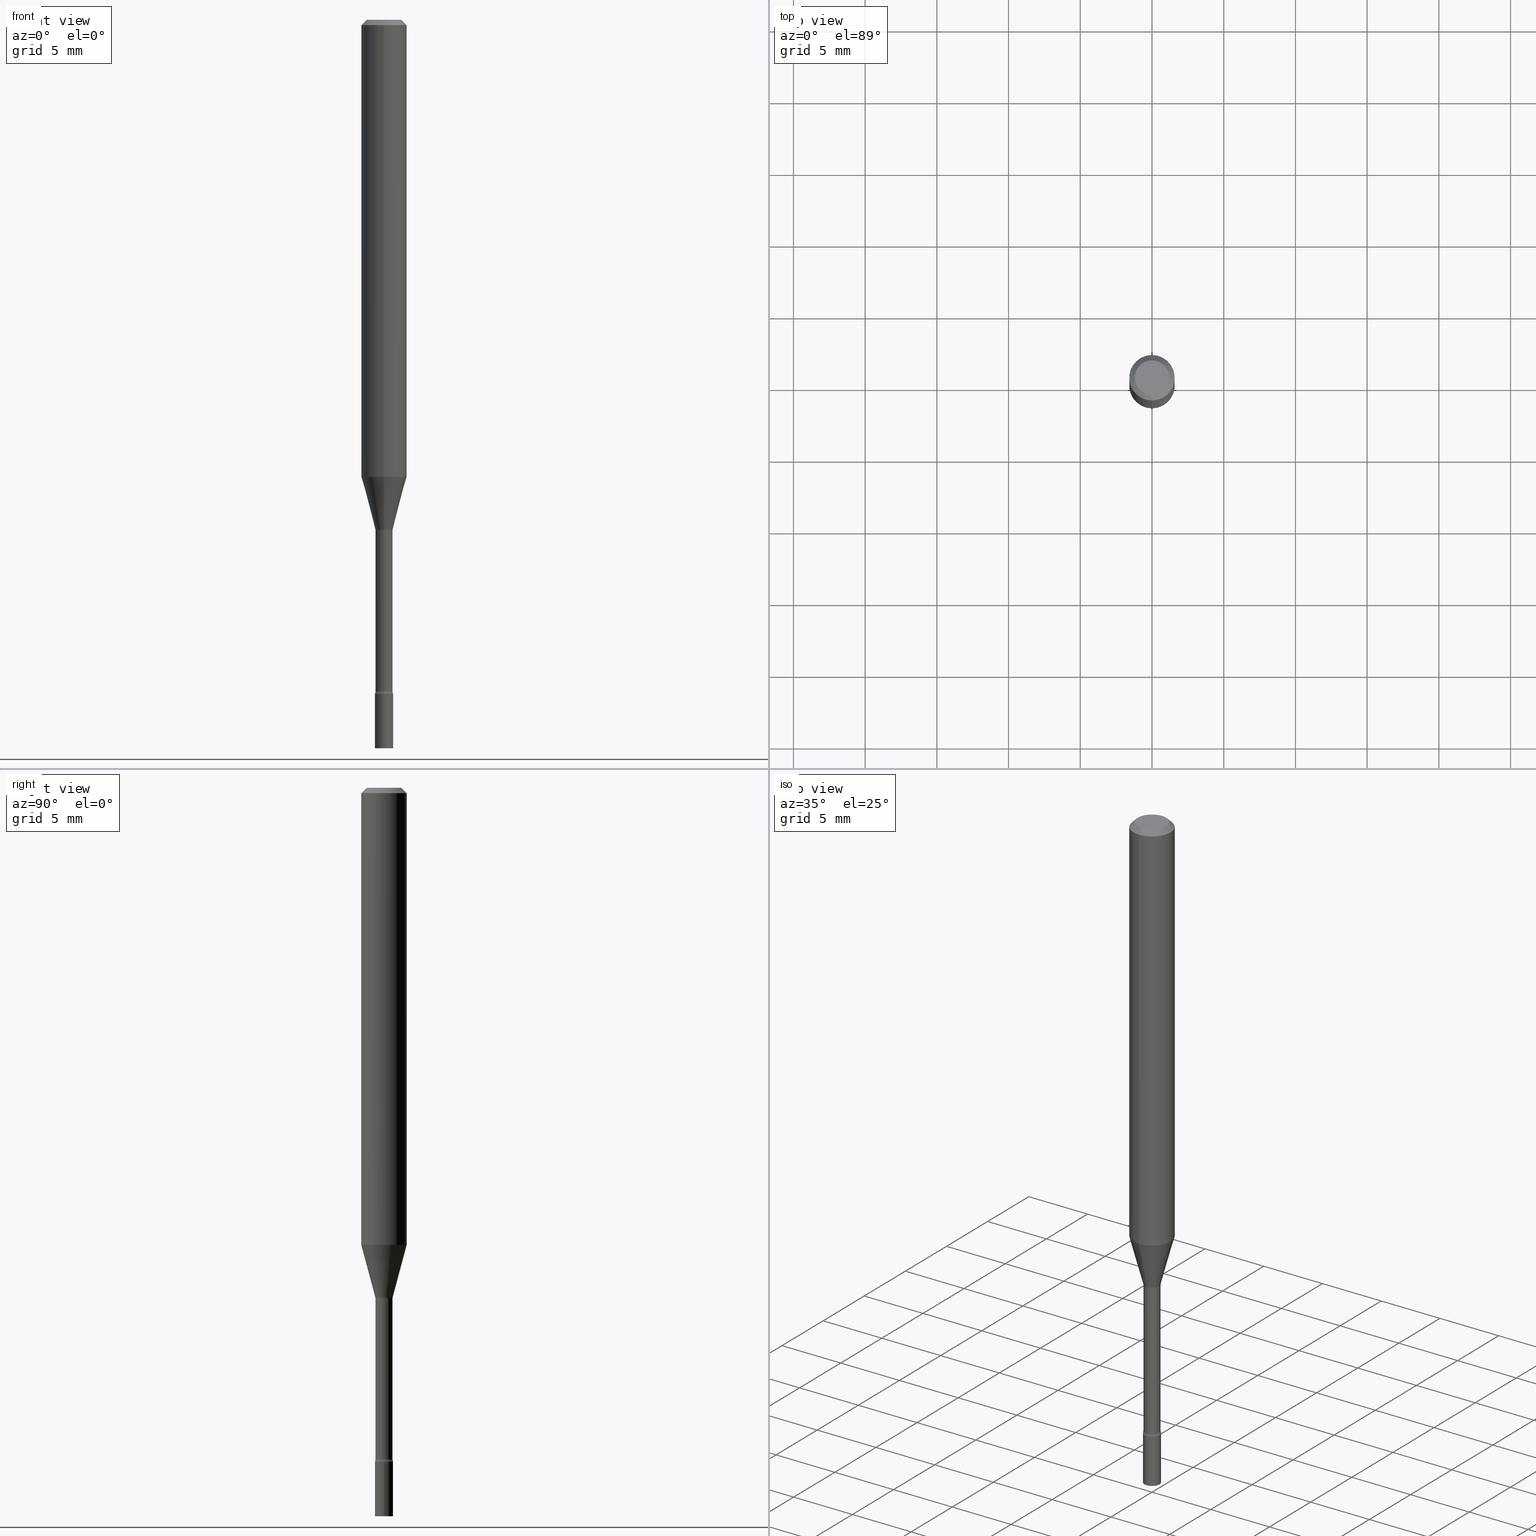
[diagram: canonical four-view strip — front | top / right | iso, engineering-drawing reading convention]
A machine part, canonical four-view strip (front | top / right | iso — engineering-drawing reading convention). The complete STEP part file that produces these views, byte-faithful:
ISO-10303-21;
HEADER;
FILE_DESCRIPTION (( 'STEP AP203' ),
    '1' );
FILE_NAME ('09372.STEP',
    '2024-03-08T23:27:05',
    ( '' ),
    ( '' ),
    'SwSTEP 2.0',
    'SolidWorks 2023',
    '' );
FILE_SCHEMA (( 'CONFIG_CONTROL_DESIGN' ));
ENDSEC;

DATA;
#1 = ORIENTED_EDGE ( 'NONE', *, *, #433, .T. ) ;
#2 = CALENDAR_DATE ( 2024, 8, 3 ) ;
#3 = ADVANCED_FACE ( 'NONE', ( #314 ), #376, .T. ) ;
#4 = CIRCLE ( 'NONE', #105, 0.02500000000000000139 ) ;
#5 = AXIS2_PLACEMENT_3D ( 'NONE', #214, #99, #345 ) ;
#6 = EDGE_LOOP ( 'NONE', ( #388, #141 ) ) ;
#7 = DIRECTION ( 'NONE',  ( -2.445515165331157393E-29, 3.491414949907445282E-15, 1.000000000000000000 ) ) ;
#8 = CARTESIAN_POINT ( 'NONE',  ( 2.735589532676728342E-16, 0.03849999999999511452, -1.401974787463811101 ) ) ;
#9 = APPROVAL_STATUS ( 'not_yet_approved' ) ;
#10 = EDGE_CURVE ( 'NONE', #465, #247, #235, .T. ) ;
#11 = COORDINATED_UNIVERSAL_TIME_OFFSET ( 5, 0, .BEHIND. ) ;
#12 = DIRECTION ( 'NONE',  ( 1.000000000000000000, -6.982962677686267499E-15, 4.876176775795936353E-29 ) ) ;
#13 = APPLICATION_CONTEXT ( 'configuration controlled 3d designs of mechanical parts and assemblies' ) ;
#14 = VECTOR ( 'NONE', #150, 39.37007874015748143 ) ;
#15 = CIRCLE ( 'NONE', #324, 0.06250000000000000000 ) ;
#16 = EDGE_CURVE ( 'NONE', #103, #420, #492, .T. ) ;
#17 = CARTESIAN_POINT ( 'NONE',  ( -0.02500000000000000139, 1.776356839400250563E-16, -1.229733772563726656E-30 ) ) ;
#18 = CARTESIAN_POINT ( 'NONE',  ( 4.524203055862640939E-29, -6.459117657328772962E-15, -1.849999999999999867 ) ) ;
#19 = AXIS2_PLACEMENT_3D ( 'NONE', #131, #125, #12 ) ;
#20 = VECTOR ( 'NONE', #498, 39.37007874015748143 ) ;
#21 = AXIS2_PLACEMENT_3D ( 'NONE', #240, #403, #184 ) ;
#22 = EDGE_LOOP ( 'NONE', ( #242, #186 ) ) ;
#23 = DIRECTION ( 'NONE',  ( -2.445515165331157393E-29, 3.491414949907445282E-15, 1.000000000000000000 ) ) ;
#24 = CARTESIAN_POINT ( 'NONE',  ( 3.668272747996743464E-31, -5.237122424861178966E-17, -0.01500000000000003067 ) ) ;
#25 = VERTEX_POINT ( 'NONE', #71 ) ;
#26 = CARTESIAN_POINT ( 'NONE',  ( 4.440892098500625669E-16, 0.06250000000000000000, -2.182134343692153054E-16 ) ) ;
#27 = ADVANCED_FACE ( 'NONE', ( #152 ), #145, .T. ) ;
#28 = CARTESIAN_POINT ( 'NONE',  ( 4.508127964348889848E-29, -6.436411955380906656E-15, -1.843461651584689109 ) ) ;
#29 = EDGE_LOOP ( 'NONE', ( #144, #195, #46, #472 ) ) ;
#30 = ORIENTED_EDGE ( 'NONE', *, *, #470, .T. ) ;
#31 = CYLINDRICAL_SURFACE ( 'NONE', #294, 0.02500000000000000139 ) ;
#32 = VERTEX_POINT ( 'NONE', #507 ) ;
#33 = DIRECTION ( 'NONE',  ( -6.982962677686265133E-15, -1.000000000000000000, 0.000000000000000000 ) ) ;
#34 = CARTESIAN_POINT ( 'NONE',  ( 4.364351673553919652E-16, 0.06249999999999995143, -0.01500000000000024751 ) ) ;
#35 = PLANE ( 'NONE',  #88 ) ;
#36 = AXIS2_PLACEMENT_3D ( 'NONE', #28, #268, #341 ) ;
#37 = CC_DESIGN_DATE_AND_TIME_ASSIGNMENT ( #244, #405, ( #444 ) ) ;
#38 = DIRECTION ( 'NONE',  ( -2.445515165331157393E-29, 3.491414949907445282E-15, 1.000000000000000000 ) ) ;
#39 = ADVANCED_FACE ( 'NONE', ( #323 ), #232, .T. ) ;
#40 = PERSON_AND_ORGANIZATION_ROLE ( 'classification_officer' ) ;
#41 = VERTEX_POINT ( 'NONE', #392 ) ;
#42 = CARTESIAN_POINT ( 'NONE',  ( -1.640996229255930104E-16, -0.02350000000000489891, -1.401974787463811101 ) ) ;
#43 = ADVANCED_FACE ( 'NONE', ( #398 ), #31, .T. ) ;
#44 = ORIENTED_EDGE ( 'NONE', *, *, #16, .F. ) ;
#45 = APPROVAL ( #279, 'UNSPECIFIED' ) ;
#46 = ORIENTED_EDGE ( 'NONE', *, *, #215, .T. ) ;
#47 = AXIS2_PLACEMENT_3D ( 'NONE', #8, #413, #457 ) ;
#48 = AXIS2_PLACEMENT_3D ( 'NONE', #380, #226, #258 ) ;
#49 = DESIGN_CONTEXT ( 'detailed design', #13, 'design' ) ;
#50 = APPROVAL_ROLE ( '' ) ;
#51 = CARTESIAN_POINT ( 'NONE',  ( 7.071711953271852697E-46, -1.009614709616782144E-31, -2.891706440231477285E-17 ) ) ;
#52 = CIRCLE ( 'NONE', #459, 0.01499999999999998557 ) ;
#53 = CIRCLE ( 'NONE', #360, 0.02500000000000000139 ) ;
#54 = DIRECTION ( 'NONE',  ( -6.982962677686265133E-15, -1.000000000000000000, 0.000000000000000000 ) ) ;
#55 = ORIENTED_EDGE ( 'NONE', *, *, #305, .F. ) ;
#56 = CARTESIAN_POINT ( 'NONE',  ( 0.000000000000000000, 0.000000000000000000, 0.000000000000000000 ) ) ;
#57 = ORIENTED_EDGE ( 'NONE', *, *, #16, .T. ) ;
#58 = UNCERTAINTY_MEASURE_WITH_UNIT (LENGTH_MEASURE( 1.000000000000000082E-05 ), #147, 'distance_accuracy_value', 'NONE');
#59 = CARTESIAN_POINT ( 'NONE',  ( -1.745740669421113083E-16, -0.02500000000000644762, -1.849999999999999867 ) ) ;
#60 = EDGE_LOOP ( 'NONE', ( #109, #503, #1, #307 ) ) ;
#61 = ADVANCED_BREP_SHAPE_REPRESENTATION ( '09372', ( #282, #90, #62 ), #164 ) ;
#62 = AXIS2_PLACEMENT_3D ( 'NONE', #153, #320, #116 ) ;
#63 = CYLINDRICAL_SURFACE ( 'NONE', #322, 0.02350000000000003475 ) ;
#64 = VERTEX_POINT ( 'NONE', #358 ) ;
#65 = DIRECTION ( 'NONE',  ( -2.445515165331157393E-29, 3.491414949907445282E-15, 1.000000000000000000 ) ) ;
#66 = DIRECTION ( 'NONE',  ( -2.445515165331157393E-29, 3.491414949907445282E-15, 1.000000000000000000 ) ) ;
#67 = ORIENTED_EDGE ( 'NONE', *, *, #509, .T. ) ;
#68 = CARTESIAN_POINT ( 'NONE',  ( 4.524117291442502256E-29, -6.459240476859818795E-15, -1.849999999999999867 ) ) ;
#69 = DIRECTION ( 'NONE',  ( -6.982962677686265922E-15, -1.000000000000000000, 3.491414949907444887E-15 ) ) ;
#70 = ORIENTED_EDGE ( 'NONE', *, *, #233, .T. ) ;
#71 = CARTESIAN_POINT ( 'NONE',  ( 3.840629472727447874E-16, 0.04749999999999999362, -1.947592745229184119E-16 ) ) ;
#72 = CIRCLE ( 'NONE', #365, 0.01499999999999998557 ) ;
#73 = TOROIDAL_SURFACE ( 'NONE', #266, 0.03850000000000005501, 0.01499999999999998036 ) ;
#74 = PERSON_AND_ORGANIZATION_ROLE ( 'design_owner' ) ;
#75 = LINE ( 'NONE', #112, #137 ) ;
#76 = EDGE_CURVE ( 'NONE', #103, #158, #238, .T. ) ;
#77 = DIRECTION ( 'NONE',  ( -6.982962677686265922E-15, -1.000000000000000000, 4.370956789862821150E-15 ) ) ;
#78 = APPROVAL_PERSON_ORGANIZATION ( #339, #263, #50 ) ;
#79 = ORIENTED_EDGE ( 'NONE', *, *, #102, .F. ) ;
#80 = DIRECTION ( 'NONE',  ( 1.000000000000000000, -6.982962677686254878E-15, 0.000000000000000000 ) ) ;
#81 = EDGE_CURVE ( 'NONE', #420, #465, #505, .T. ) ;
#82 = COORDINATED_UNIVERSAL_TIME_OFFSET ( 5, 0, .BEHIND. ) ;
#83 = EDGE_CURVE ( 'NONE', #465, #113, #286, .T. ) ;
#84 = FACE_OUTER_BOUND ( 'NONE', #391, .T. ) ;
#85 = DIRECTION ( 'NONE',  ( 7.105427357600997914E-15, 1.000000000000000000, 0.000000000000000000 ) ) ;
#86 = ORIENTED_EDGE ( 'NONE', *, *, #233, .F. ) ;
#87 = FACE_OUTER_BOUND ( 'NONE', #270, .T. ) ;
#88 = AXIS2_PLACEMENT_3D ( 'NONE', #440, #192, #69 ) ;
#89 = PERSON_AND_ORGANIZATION ( #311, #124 ) ;
#90 = MANIFOLD_SOLID_BREP ( 'Body-Move/Copy2[2]', #442 ) ;
#91 = CARTESIAN_POINT ( 'NONE',  ( 3.668272747996743464E-31, -5.237122424861178966E-17, -0.01500000000000003067 ) ) ;
#92 = CARTESIAN_POINT ( 'NONE',  ( 1.776356839400701940E-16, 0.02499999999999353087, -1.849999999999999867 ) ) ;
#93 = DIRECTION ( 'NONE',  ( -4.851104656540964275E-15, -0.7071067811865500152, -0.7071067811865450192 ) ) ;
#94 = LINE ( 'NONE', #495, #409 ) ;
#95 = AXIS2_PLACEMENT_3D ( 'NONE', #363, #408, #161 ) ;
#96 = LOCAL_TIME ( 18, 27, 5.000000000000000000, #128 ) ;
#97 = EDGE_CURVE ( 'NONE', #41, #205, #52, .T. ) ;
#98 = PLANE ( 'NONE',  #5 ) ;
#99 = DIRECTION ( 'NONE',  ( 2.438088387897960049E-29, -3.491481338843145188E-15, -1.000000000000000000 ) ) ;
#100 = DIRECTION ( 'NONE',  ( -1.000000000000000000, 6.982962677686265922E-15, -4.883557194083112901E-29 ) ) ;
#101 = DIRECTION ( 'NONE',  ( -6.982962677686265133E-15, -1.000000000000000000, 0.000000000000000000 ) ) ;
#102 = EDGE_CURVE ( 'NONE', #158, #390, #321, .T. ) ;
#103 = VERTEX_POINT ( 'NONE', #166 ) ;
#104 = ORIENTED_EDGE ( 'NONE', *, *, #202, .T. ) ;
#105 = AXIS2_PLACEMENT_3D ( 'NONE', #336, #285, #80 ) ;
#106 = VECTOR ( 'NONE', #93, 39.37007874015748143 ) ;
#107 = DIRECTION ( 'NONE',  ( -2.445515165331157393E-29, 3.491414949907445282E-15, 1.000000000000000000 ) ) ;
#108 = ORIENTED_EDGE ( 'NONE', *, *, #415, .F. ) ;
#109 = ORIENTED_EDGE ( 'NONE', *, *, #236, .F. ) ;
#110 = CARTESIAN_POINT ( 'NONE',  ( 3.419056415656554826E-29, -4.881321062093587157E-15, -1.398092501787273179 ) ) ;
#111 = EDGE_CURVE ( 'NONE', #372, #32, #4, .T. ) ;
#112 = CARTESIAN_POINT ( 'NONE',  ( -1.640996229256275231E-16, -0.02350000000000003475, 8.204825132282509112E-17 ) ) ;
#113 = VERTEX_POINT ( 'NONE', #243 ) ;
#114 = AXIS2_PLACEMENT_3D ( 'NONE', #120, #293, #374 ) ;
#115 = AXIS2_PLACEMENT_3D ( 'NONE', #180, #428, #309 ) ;
#116 = DIRECTION ( 'NONE',  ( 1.000000000000000000, 0.000000000000000000, 0.000000000000000000 ) ) ;
#117 = DIRECTION ( 'NONE',  ( -6.982962677686265922E-15, -1.000000000000000000, 3.491414949907444887E-15 ) ) ;
#118 = CYLINDRICAL_SURFACE ( 'NONE', #122, 0.06250000000000000000 ) ;
#119 = FACE_OUTER_BOUND ( 'NONE', #367, .T. ) ;
#120 = CARTESIAN_POINT ( 'NONE',  ( 4.508213425656779262E-29, -6.436289569923853216E-15, -1.843461651584689109 ) ) ;
#121 = CARTESIAN_POINT ( 'NONE',  ( 2.735589532676839768E-16, 0.03849999999999361572, -1.843461651584689109 ) ) ;
#122 = AXIS2_PLACEMENT_3D ( 'NONE', #479, #248, #117 ) ;
#123 = SHAPE_DEFINITION_REPRESENTATION ( #315, #61 ) ;
#124 = ORGANIZATION ( 'UNSPECIFIED', 'UNSPECIFIED', '' ) ;
#125 = DIRECTION ( 'NONE',  ( -2.445468806185136597E-29, 3.491481338843145583E-15, 1.000000000000000000 ) ) ;
#126 = APPLICATION_CONTEXT ( 'configuration controlled 3d designs of mechanical parts and assemblies' ) ;
#127 = DIRECTION ( 'NONE',  ( -2.445515165331157393E-29, 3.491414949907445282E-15, 1.000000000000000000 ) ) ;
#128 = COORDINATED_UNIVERSAL_TIME_OFFSET ( 5, 0, .BEHIND. ) ;
#129 = FACE_OUTER_BOUND ( 'NONE', #172, .T. ) ;
#130 = DIRECTION ( 'NONE',  ( 1.000000000000000000, -7.105427357601001070E-15, 4.926314695512106152E-29 ) ) ;
#131 = CARTESIAN_POINT ( 'NONE',  ( 0.000000000000000000, 0.000000000000000000, 0.000000000000000000 ) ) ;
#132 = CIRCLE ( 'NONE', #435, 0.02500000000000000139 ) ;
#133 = EDGE_CURVE ( 'NONE', #390, #158, #135, .T. ) ;
#134 = FACE_OUTER_BOUND ( 'NONE', #60, .T. ) ;
#135 = CIRCLE ( 'NONE', #255, 0.02350000000000000352 ) ;
#136 = ADVANCED_FACE ( 'NONE', ( #448 ), #118, .T. ) ;
#137 = VECTOR ( 'NONE', #157, 39.37007874015748143 ) ;
#138 = DIRECTION ( 'NONE',  ( -6.982962677686265922E-15, -1.000000000000000000, 3.483106191921935554E-15 ) ) ;
#139 = ORIENTED_EDGE ( 'NONE', *, *, #10, .T. ) ;
#140 = DIRECTION ( 'NONE',  ( -2.445515165331157393E-29, 3.491414949907445282E-15, 1.000000000000000000 ) ) ;
#141 = ORIENTED_EDGE ( 'NONE', *, *, #415, .T. ) ;
#142 = CARTESIAN_POINT ( 'NONE',  ( 1.706092163947573256E-16, 0.02401111260565910385, -1.398092501787273179 ) ) ;
#143 = LINE ( 'NONE', #349, #517 ) ;
#144 = ORIENTED_EDGE ( 'NONE', *, *, #10, .F. ) ;
#145 = CONICAL_SURFACE ( 'NONE', #475, 0.02401111260566398883, 0.2617993877991502960 ) ;
#146 = CONICAL_SURFACE ( 'NONE', #467, 0.06250000000000000000, 0.7853981633974483900 ) ;
#147 =( CONVERSION_BASED_UNIT ( 'INCH', #356 ) LENGTH_UNIT ( ) NAMED_UNIT ( #397 ) );
#148 = EDGE_LOOP ( 'NONE', ( #67, #139, #264, #510 ) ) ;
#149 = ORIENTED_EDGE ( 'NONE', *, *, #449, .T. ) ;
#150 = DIRECTION ( 'NONE',  ( 1.839019923739600710E-15, 0.2588190451025250138, 0.9659258262890670910 ) ) ;
#151 = EDGE_LOOP ( 'NONE', ( #385, #310, #269, #421 ) ) ;
#152 = FACE_OUTER_BOUND ( 'NONE', #452, .T. ) ;
#153 = CARTESIAN_POINT ( 'NONE',  ( 0.000000000000000000, 0.000000000000000000, 0.000000000000000000 ) ) ;
#154 = DIRECTION ( 'NONE',  ( -2.445515165331157393E-29, 3.491414949907445282E-15, 1.000000000000000000 ) ) ;
#155 = AXIS2_PLACEMENT_3D ( 'NONE', #340, #288, #453 ) ;
#156 = CIRCLE ( 'NONE', #354, 0.02500000000000000139 ) ;
#157 = DIRECTION ( 'NONE',  ( -2.445515165331157393E-29, 3.491414949907444887E-15, 1.000000000000000000 ) ) ;
#158 = VERTEX_POINT ( 'NONE', #42 ) ;
#159 = CARTESIAN_POINT ( 'NONE',  ( -2.688440630908765439E-16, -0.03850000000000649431, -1.843461651584689109 ) ) ;
#160 = CALENDAR_DATE ( 2024, 8, 3 ) ;
#161 = DIRECTION ( 'NONE',  ( -6.982962677686265922E-15, -1.000000000000000000, 3.483106191921935554E-15 ) ) ;
#162 = VECTOR ( 'NONE', #362, 39.37007874015748143 ) ;
#163 = PERSON_AND_ORGANIZATION_ROLE ( 'design_supplier' ) ;
#164 =( GEOMETRIC_REPRESENTATION_CONTEXT ( 3 ) GLOBAL_UNCERTAINTY_ASSIGNED_CONTEXT ( ( #58 ) ) GLOBAL_UNIT_ASSIGNED_CONTEXT ( ( #147, #357, #313 ) ) REPRESENTATION_CONTEXT ( 'NONE', 'WORKASPACE' ) );
#165 = DIRECTION ( 'NONE',  ( 1.000000000000000000, -6.982962677686254878E-15, 0.000000000000000000 ) ) ;
#166 = CARTESIAN_POINT ( 'NONE',  ( -1.676687031750396736E-16, -0.02401111260566887035, -1.398092501787273179 ) ) ;
#167 = PERSON_AND_ORGANIZATION ( #311, #124 ) ;
#168 = FACE_OUTER_BOUND ( 'NONE', #193, .T. ) ;
#169 = CIRCLE ( 'NONE', #250, 0.06250000000000000000 ) ;
#170 = DIRECTION ( 'NONE',  ( -2.445515165331157393E-29, 3.491414949907445282E-15, 1.000000000000000000 ) ) ;
#171 = PRODUCT_DEFINITION ( 'UNKNOWN', '', #460, #49 ) ;
#172 = EDGE_LOOP ( 'NONE', ( #221, #191, #223, #317 ) ) ;
#173 = DIRECTION ( 'NONE',  ( -2.445515165331157393E-29, 3.491414949907445282E-15, 1.000000000000000000 ) ) ;
#174 = CLOSED_SHELL ( 'NONE', ( #43, #39, #276, #318 ) ) ;
#175 = CIRCLE ( 'NONE', #516, 0.04749999999999999362 ) ;
#176 = VECTOR ( 'NONE', #271, 39.37007874015748143 ) ;
#177 = DIRECTION ( 'NONE',  ( -2.445468806185136597E-29, 3.491481338843145583E-15, 1.000000000000000000 ) ) ;
#178 = ORIENTED_EDGE ( 'NONE', *, *, #202, .F. ) ;
#179 = CARTESIAN_POINT ( 'NONE',  ( -2.688440630908869963E-16, -0.03850000000000489836, -1.401974787463811101 ) ) ;
#180 = CARTESIAN_POINT ( 'NONE',  ( 3.428485609800787057E-29, -4.894968807958481776E-15, -1.401974787463811101 ) ) ;
#181 = CARTESIAN_POINT ( 'NONE',  ( 3.419056415656554826E-29, -4.881321062093587157E-15, -1.398092501787273179 ) ) ;
#182 = CC_DESIGN_PERSON_AND_ORGANIZATION_ASSIGNMENT ( #201, #163, ( #460 ) ) ;
#183 = EDGE_CURVE ( 'NONE', #247, #64, #353, .T. ) ;
#184 = DIRECTION ( 'NONE',  ( -6.982962677686265922E-15, -1.000000000000000000, 3.491414949907444887E-15 ) ) ;
#185 = ORIENTED_EDGE ( 'NONE', *, *, #97, .F. ) ;
#186 = ORIENTED_EDGE ( 'NONE', *, *, #236, .T. ) ;
#187 = AXIS2_PLACEMENT_3D ( 'NONE', #427, #65, #402 ) ;
#188 = LOCAL_TIME ( 18, 27, 5.000000000000000000, #11 ) ;
#189 = FACE_OUTER_BOUND ( 'NONE', #469, .T. ) ;
#190 = EDGE_CURVE ( 'NONE', #25, #308, #334, .T. ) ;
#191 = ORIENTED_EDGE ( 'NONE', *, *, #190, .F. ) ;
#192 = DIRECTION ( 'NONE',  ( -2.445515165331157113E-29, 3.491414949907444887E-15, 1.000000000000000000 ) ) ;
#193 = EDGE_LOOP ( 'NONE', ( #491, #464, #352, #327 ) ) ;
#194 = CARTESIAN_POINT ( 'NONE',  ( 0.000000000000000000, 0.000000000000000000, 0.000000000000000000 ) ) ;
#195 = ORIENTED_EDGE ( 'NONE', *, *, #83, .T. ) ;
#196 = EDGE_CURVE ( 'NONE', #205, #432, #382, .T. ) ;
#197 = VECTOR ( 'NONE', #224, 39.37007874015748143 ) ;
#198 = CARTESIAN_POINT ( 'NONE',  ( 3.067776544403474457E-29, -4.379805548519381130E-15, -1.254450018504814413 ) ) ;
#199 = CARTESIAN_POINT ( 'NONE',  ( 3.428550604154676765E-29, -4.894875732344463404E-15, -1.401974787463811101 ) ) ;
#200 = DATE_AND_TIME ( #253, #239 ) ;
#201 = PERSON_AND_ORGANIZATION ( #311, #124 ) ;
#202 = EDGE_CURVE ( 'NONE', #420, #390, #274, .T. ) ;
#203 = DIRECTION ( 'NONE',  ( -6.982962677686265922E-15, -1.000000000000000000, 0.000000000000000000 ) ) ;
#204 = PERSON_AND_ORGANIZATION ( #311, #124 ) ;
#205 = VERTEX_POINT ( 'NONE', #92 ) ;
#206 = CYLINDRICAL_SURFACE ( 'NONE', #19, 0.02500000000000000139 ) ;
#207 = APPROVAL_DATE_TIME ( #450, #291 ) ;
#208 = PRODUCT_RELATED_PRODUCT_CATEGORY ( 'detail', '', ( #395 ) ) ;
#209 = APPROVAL_DATE_TIME ( #490, #263 ) ;
#210 = DIRECTION ( 'NONE',  ( -6.982962677686266711E-15, -1.000000000000000000, 3.491414949907445676E-15 ) ) ;
#211 = AXIS2_PLACEMENT_3D ( 'NONE', #68, #229, #267 ) ;
#212 = LOCAL_TIME ( 18, 27, 5.000000000000000000, #82 ) ;
#213 = LINE ( 'NONE', #343, #20 ) ;
#214 = CARTESIAN_POINT ( 'NONE',  ( 1.745740669422055771E-16, 0.02499999999999301739, -2.000000000000000000 ) ) ;
#215 = EDGE_CURVE ( 'NONE', #113, #64, #342, .T. ) ;
#216 = FACE_OUTER_BOUND ( 'NONE', #423, .T. ) ;
#217 = VERTEX_POINT ( 'NONE', #518 ) ;
#218 = EDGE_CURVE ( 'NONE', #231, #432, #72, .T. ) ;
#219 = DIRECTION ( 'NONE',  ( -2.445515165331157393E-29, 3.491414949907445282E-15, 1.000000000000000000 ) ) ;
#220 = DIRECTION ( 'NONE',  ( -2.445468806185136877E-29, 3.491481338843145188E-15, 1.000000000000000000 ) ) ;
#221 = ORIENTED_EDGE ( 'NONE', *, *, #378, .F. ) ;
#222 = CC_DESIGN_PERSON_AND_ORGANIZATION_ASSIGNMENT ( #204, #295, ( #171 ) ) ;
#223 = ORIENTED_EDGE ( 'NONE', *, *, #483, .T. ) ;
#224 = DIRECTION ( 'NONE',  ( -2.445515165331157393E-29, 3.491414949907444887E-15, 1.000000000000000000 ) ) ;
#225 = EDGE_CURVE ( 'NONE', #231, #41, #344, .T. ) ;
#226 = DIRECTION ( 'NONE',  ( -2.445515165331157393E-29, 3.491414949907445282E-15, 1.000000000000000000 ) ) ;
#227 = ORIENTED_EDGE ( 'NONE', *, *, #218, .F. ) ;
#228 = EDGE_LOOP ( 'NONE', ( #429, #249, #348, #227 ) ) ;
#229 = DIRECTION ( 'NONE',  ( -2.438088387897960049E-29, 3.491481338843145188E-15, 1.000000000000000000 ) ) ;
#230 = DIRECTION ( 'NONE',  ( -2.445515165331157393E-29, 3.491414949907445282E-15, 1.000000000000000000 ) ) ;
#231 = VERTEX_POINT ( 'NONE', #252 ) ;
#232 = PLANE ( 'NONE',  #211 ) ;
#233 = EDGE_CURVE ( 'NONE', #103, #113, #94, .T. ) ;
#234 = FACE_OUTER_BOUND ( 'NONE', #22, .T. ) ;
#235 = LINE ( 'NONE', #26, #197 ) ;
#236 = EDGE_CURVE ( 'NONE', #308, #25, #175, .T. ) ;
#237 = DIRECTION ( 'NONE',  ( -6.982962677686265922E-15, -1.000000000000000000, 3.491414949907444887E-15 ) ) ;
#238 = CIRCLE ( 'NONE', #454, 0.01500000000000002720 ) ;
#239 = LOCAL_TIME ( 18, 27, 5.000000000000000000, #254 ) ;
#240 = CARTESIAN_POINT ( 'NONE',  ( 0.000000000000000000, 0.000000000000000000, 0.000000000000000000 ) ) ;
#241 = ORIENTED_EDGE ( 'NONE', *, *, #83, .F. ) ;
#242 = ORIENTED_EDGE ( 'NONE', *, *, #190, .T. ) ;
#243 = CARTESIAN_POINT ( 'NONE',  ( -4.364351673553610517E-16, -0.06250000000000439926, -1.254450018504814190 ) ) ;
#244 = DATE_AND_TIME ( #456, #212 ) ;
#245 = DIRECTION ( 'NONE',  ( -6.982962677686266711E-15, -1.000000000000000000, 3.491414949907445676E-15 ) ) ;
#246 = EDGE_CURVE ( 'NONE', #217, #259, #359, .T. ) ;
#247 = VERTEX_POINT ( 'NONE', #368 ) ;
#248 = DIRECTION ( 'NONE',  ( -2.445515165331157393E-29, 3.491414949907445282E-15, 1.000000000000000000 ) ) ;
#249 = ORIENTED_EDGE ( 'NONE', *, *, #97, .T. ) ;
#250 = AXIS2_PLACEMENT_3D ( 'NONE', #198, #280, #77 ) ;
#251 = ORIENTED_EDGE ( 'NONE', *, *, #111, .F. ) ;
#252 = CARTESIAN_POINT ( 'NONE',  ( -1.640996229255826813E-16, -0.02350000000000651221, -1.843461651584689109 ) ) ;
#253 = CALENDAR_DATE ( 2024, 8, 3 ) ;
#254 = COORDINATED_UNIVERSAL_TIME_OFFSET ( 5, 0, .BEHIND. ) ;
#255 = AXIS2_PLACEMENT_3D ( 'NONE', #328, #127, #404 ) ;
#256 = CARTESIAN_POINT ( 'NONE',  ( 4.890937612370273194E-29, -6.982962677686291165E-15, -2.000000000000000000 ) ) ;
#257 = CC_DESIGN_SECURITY_CLASSIFICATION ( #444, ( #460 ) ) ;
#258 = DIRECTION ( 'NONE',  ( -6.982962677686266711E-15, -1.000000000000000000, 0.000000000000000000 ) ) ;
#259 = VERTEX_POINT ( 'NONE', #297 ) ;
#260 = DIRECTION ( 'NONE',  ( -2.445468806185136597E-29, 3.491481338843145583E-15, 1.000000000000000000 ) ) ;
#261 = DIRECTION ( 'NONE',  ( -6.982962677686265133E-15, -1.000000000000000000, 0.000000000000000000 ) ) ;
#262 = CARTESIAN_POINT ( 'NONE',  ( 0.02500000000000000139, -7.157536744628447044E-15, -2.000000000000000000 ) ) ;
#263 = APPROVAL ( #446, 'UNSPECIFIED' ) ;
#264 = ORIENTED_EDGE ( 'NONE', *, *, #433, .F. ) ;
#265 = ORIENTED_EDGE ( 'NONE', *, *, #76, .F. ) ;
#266 = AXIS2_PLACEMENT_3D ( 'NONE', #330, #230, #237 ) ;
#267 = DIRECTION ( 'NONE',  ( 1.000000000000000000, -6.982962677686265922E-15, 4.876176775795935793E-29 ) ) ;
#268 = DIRECTION ( 'NONE',  ( -2.445515165331157393E-29, 3.491414949907445282E-15, 1.000000000000000000 ) ) ;
#269 = ORIENTED_EDGE ( 'NONE', *, *, #246, .F. ) ;
#270 = EDGE_LOOP ( 'NONE', ( #281, #462, #149, #108 ) ) ;
#271 = DIRECTION ( 'NONE',  ( 4.937700262164548042E-15, 0.7071067811865451302, -0.7071067811865499042 ) ) ;
#272 = ORIENTED_EDGE ( 'NONE', *, *, #218, .T. ) ;
#273 = ORIENTED_EDGE ( 'NONE', *, *, #81, .T. ) ;
#274 = CIRCLE ( 'NONE', #47, 0.01500000000000002720 ) ;
#275 = VECTOR ( 'NONE', #220, 39.37007874015748143 ) ;
#276 = ADVANCED_FACE ( 'NONE', ( #87 ), #206, .T. ) ;
#277 = MECHANICAL_CONTEXT ( 'NONE', #126, 'mechanical' ) ;
#278 = EDGE_LOOP ( 'NONE', ( #251, #304 ) ) ;
#279 = APPROVAL_STATUS ( 'not_yet_approved' ) ;
#280 = DIRECTION ( 'NONE',  ( -2.445515165331157393E-29, 3.491414949907445282E-15, 1.000000000000000000 ) ) ;
#281 = ORIENTED_EDGE ( 'NONE', *, *, #329, .F. ) ;
#282 = MANIFOLD_SOLID_BREP ( 'Body-Move/Copy2[1]', #174 ) ;
#283 = ADVANCED_FACE ( 'NONE', ( #168 ), #292, .T. ) ;
#284 = ADVANCED_FACE ( 'NONE', ( #129 ), #396, .T. ) ;
#285 = DIRECTION ( 'NONE',  ( -2.445468806185136597E-29, 3.491481338843145583E-15, 1.000000000000000000 ) ) ;
#286 = CIRCLE ( 'NONE', #187, 0.06250000000000000000 ) ;
#287 = APPROVAL_DATE_TIME ( #519, #45 ) ;
#288 = DIRECTION ( 'NONE',  ( -2.445515165331157393E-29, 3.491414949907445282E-15, 1.000000000000000000 ) ) ;
#289 = CARTESIAN_POINT ( 'NONE',  ( 4.524203055862640939E-29, -6.459117657328772962E-15, -1.849999999999999867 ) ) ;
#290 = CALENDAR_DATE ( 2024, 8, 3 ) ;
#291 = APPROVAL ( #9, 'UNSPECIFIED' ) ;
#292 = CYLINDRICAL_SURFACE ( 'NONE', #155, 0.02350000000000003475 ) ;
#293 = DIRECTION ( 'NONE',  ( -2.445515165331157393E-29, 3.491414949907445282E-15, 1.000000000000000000 ) ) ;
#294 = AXIS2_PLACEMENT_3D ( 'NONE', #194, #355, #512 ) ;
#295 = PERSON_AND_ORGANIZATION_ROLE ( 'creator' ) ;
#296 = DATE_TIME_ROLE ( 'creation_date' ) ;
#297 = CARTESIAN_POINT ( 'NONE',  ( -0.02500000000000000139, -6.543465893333030170E-15, -1.849999999999999867 ) ) ;
#298 = CARTESIAN_POINT ( 'NONE',  ( 4.440892098500930859E-16, 0.06249999999999559380, -1.254450018504814635 ) ) ;
#299 = ADVANCED_FACE ( 'NONE', ( #84 ), #63, .T. ) ;
#300 = AXIS2_PLACEMENT_3D ( 'NONE', #199, #38, #203 ) ;
#301 = CARTESIAN_POINT ( 'NONE',  ( 3.668272747996743464E-31, -5.237122424861178966E-17, -0.01500000000000003067 ) ) ;
#302 = AXIS2_PLACEMENT_3D ( 'NONE', #504, #140, #54 ) ;
#303 = FACE_OUTER_BOUND ( 'NONE', #515, .T. ) ;
#304 = ORIENTED_EDGE ( 'NONE', *, *, #331, .F. ) ;
#305 = EDGE_CURVE ( 'NONE', #432, #205, #53, .T. ) ;
#306 = DIRECTION ( 'NONE',  ( -6.982962677686267499E-15, -1.000000000000000000, 3.491414949907445676E-15 ) ) ;
#307 = ORIENTED_EDGE ( 'NONE', *, *, #483, .F. ) ;
#308 = VERTEX_POINT ( 'NONE', #463 ) ;
#309 = DIRECTION ( 'NONE',  ( -6.982962677686265922E-15, -1.000000000000000000, 3.491414949907445676E-15 ) ) ;
#310 = ORIENTED_EDGE ( 'NONE', *, *, #329, .T. ) ;
#311 = PERSON ( 'UNSPECIFIED', 'UNSPECIFIED', 'UNSPECIFIED', ('UNSPECIFIED'), ('UNSPECIFIED'), ('UNSPECIFIED') ) ;
#312 = CC_DESIGN_APPROVAL ( #45, ( #171 ) ) ;
#313 =( NAMED_UNIT ( * ) SI_UNIT ( $, .STERADIAN. ) SOLID_ANGLE_UNIT ( ) );
#314 = FACE_OUTER_BOUND ( 'NONE', #441, .T. ) ;
#315 = PRODUCT_DEFINITION_SHAPE ( 'NONE', 'NONE',  #171 ) ;
#316 = DIRECTION ( 'NONE',  ( 6.982962677686265922E-15, 1.000000000000000000, -3.491414949907444887E-15 ) ) ;
#317 = ORIENTED_EDGE ( 'NONE', *, *, #183, .T. ) ;
#318 = ADVANCED_FACE ( 'NONE', ( #426 ), #98, .T. ) ;
#319 = ORIENTED_EDGE ( 'NONE', *, *, #470, .F. ) ;
#320 = DIRECTION ( 'NONE',  ( 0.000000000000000000, 0.000000000000000000, 1.000000000000000000 ) ) ;
#321 = CIRCLE ( 'NONE', #300, 0.02350000000000000352 ) ;
#322 = AXIS2_PLACEMENT_3D ( 'NONE', #56, #173, #306 ) ;
#323 = FACE_OUTER_BOUND ( 'NONE', #6, .T. ) ;
#324 = AXIS2_PLACEMENT_3D ( 'NONE', #24, #66, #138 ) ;
#325 = EDGE_CURVE ( 'NONE', #41, #231, #493, .T. ) ;
#326 = APPLICATION_PROTOCOL_DEFINITION ( 'international standard', 'config_control_design', 1994, #13 ) ;
#327 = ORIENTED_EDGE ( 'NONE', *, *, #133, .F. ) ;
#328 = CARTESIAN_POINT ( 'NONE',  ( 3.428550604154676765E-29, -4.894875732344463404E-15, -1.401974787463811101 ) ) ;
#329 = EDGE_CURVE ( 'NONE', #32, #259, #389, .T. ) ;
#330 = CARTESIAN_POINT ( 'NONE',  ( 4.508127964348889848E-29, -6.436411955380906656E-15, -1.843461651584689109 ) ) ;
#331 = EDGE_CURVE ( 'NONE', #32, #372, #132, .T. ) ;
#332 = DIRECTION ( 'NONE',  ( -1.000000000000000000, 6.982962677686265922E-15, -4.883557194083112901E-29 ) ) ;
#333 = DIRECTION ( 'NONE',  ( -2.445515165331157393E-29, 3.491414949907445282E-15, 1.000000000000000000 ) ) ;
#334 = CIRCLE ( 'NONE', #500, 0.04749999999999999362 ) ;
#335 = DIRECTION ( 'NONE',  ( -1.807323732225330534E-15, -0.2588190451025182415, 0.9659258262890689783 ) ) ;
#336 = CARTESIAN_POINT ( 'NONE',  ( 4.890937612370273194E-29, -6.982962677686291165E-15, -2.000000000000000000 ) ) ;
#337 = AXIS2_PLACEMENT_3D ( 'NONE', #514, #219, #430 ) ;
#338 = TOROIDAL_SURFACE ( 'NONE', #115, 0.03850000000000000644, 0.01500000000000002373 ) ;
#339 = PERSON_AND_ORGANIZATION ( #311, #124 ) ;
#340 = CARTESIAN_POINT ( 'NONE',  ( 0.000000000000000000, 0.000000000000000000, 0.000000000000000000 ) ) ;
#341 = DIRECTION ( 'NONE',  ( -6.982962677686265922E-15, -1.000000000000000000, 3.491414949907444887E-15 ) ) ;
#342 = LINE ( 'NONE', #511, #162 ) ;
#343 = CARTESIAN_POINT ( 'NONE',  ( 1.669775429036237659E-16, 0.02350000000000003475, -8.204825132282509112E-17 ) ) ;
#344 = CIRCLE ( 'NONE', #114, 0.02350000000000007291 ) ;
#345 = DIRECTION ( 'NONE',  ( -1.000000000000000000, 6.982962677686265922E-15, -4.876176775795935793E-29 ) ) ;
#346 = TOROIDAL_SURFACE ( 'NONE', #425, 0.03850000000000000644, 0.01500000000000002373 ) ;
#347 = LINE ( 'NONE', #468, #106 ) ;
#348 = ORIENTED_EDGE ( 'NONE', *, *, #196, .T. ) ;
#349 = CARTESIAN_POINT ( 'NONE',  ( 0.02500000000000000139, -1.745740669421566924E-16, 1.219044193948984123E-30 ) ) ;
#350 = ORIENTED_EDGE ( 'NONE', *, *, #494, .F. ) ;
#351 =( LENGTH_UNIT ( ) NAMED_UNIT ( * ) SI_UNIT ( $, .METRE. ) );
#352 = ORIENTED_EDGE ( 'NONE', *, *, #494, .T. ) ;
#353 = CIRCLE ( 'NONE', #95, 0.06250000000000000000 ) ;
#354 = AXIS2_PLACEMENT_3D ( 'NONE', #506, #177, #502 ) ;
#355 = DIRECTION ( 'NONE',  ( -2.445468806185136597E-29, 3.491481338843145583E-15, 1.000000000000000000 ) ) ;
#356 = LENGTH_MEASURE_WITH_UNIT ( LENGTH_MEASURE( 0.02539999999999999897 ), #351 );
#357 =( NAMED_UNIT ( * ) PLANE_ANGLE_UNIT ( ) SI_UNIT ( $, .RADIAN. ) );
#358 = CARTESIAN_POINT ( 'NONE',  ( -4.364351673553912750E-16, -0.06250000000000005551, -0.01499999999999981209 ) ) ;
#359 = CIRCLE ( 'NONE', #477, 0.02500000000000000139 ) ;
#360 = AXIS2_PLACEMENT_3D ( 'NONE', #18, #107, #101 ) ;
#361 = FACE_OUTER_BOUND ( 'NONE', #148, .T. ) ;
#362 = DIRECTION ( 'NONE',  ( -2.445515165331157393E-29, 3.491414949907444887E-15, 1.000000000000000000 ) ) ;
#363 = CARTESIAN_POINT ( 'NONE',  ( 3.668272747996743464E-31, -5.237122424861178966E-17, -0.01500000000000003067 ) ) ;
#364 = ORIENTED_EDGE ( 'NONE', *, *, #81, .F. ) ;
#365 = AXIS2_PLACEMENT_3D ( 'NONE', #159, #332, #484 ) ;
#366 = PERSON_AND_ORGANIZATION_ROLE ( 'creator' ) ;
#367 = EDGE_LOOP ( 'NONE', ( #185, #439, #272, #445 ) ) ;
#368 = CARTESIAN_POINT ( 'NONE',  ( 4.440892098500934804E-16, 0.06249999999999995143, -0.01500000000000024751 ) ) ;
#369 = DIRECTION ( 'NONE',  ( -6.982962677686265133E-15, -1.000000000000000000, 0.000000000000000000 ) ) ;
#370 = DIRECTION ( 'NONE',  ( -2.445468806185136597E-29, 3.491481338843145583E-15, 1.000000000000000000 ) ) ;
#371 = PERSON_AND_ORGANIZATION ( #311, #124 ) ;
#372 = VERTEX_POINT ( 'NONE', #262 ) ;
#373 = CARTESIAN_POINT ( 'NONE',  ( 4.524117291442502256E-29, -6.459240476859818795E-15, -1.849999999999999867 ) ) ;
#374 = DIRECTION ( 'NONE',  ( -6.982962677686266711E-15, -1.000000000000000000, 0.000000000000000000 ) ) ;
#375 = CC_DESIGN_PERSON_AND_ORGANIZATION_ASSIGNMENT ( #437, #74, ( #395 ) ) ;
#376 = CONICAL_SURFACE ( 'NONE', #337, 0.02401111260566398883, 0.2617993877991502960 ) ;
#377 = APPROVAL_PERSON_ORGANIZATION ( #481, #45, #414 ) ;
#378 = EDGE_CURVE ( 'NONE', #308, #64, #347, .T. ) ;
#379 = CARTESIAN_POINT ( 'NONE',  ( 1.669775429036688050E-16, 0.02349999999999510467, -1.401974787463811101 ) ) ;
#380 = CARTESIAN_POINT ( 'NONE',  ( 4.508213425656779262E-29, -6.436289569923853216E-15, -1.843461651584689109 ) ) ;
#381 = CC_DESIGN_PERSON_AND_ORGANIZATION_ASSIGNMENT ( #167, #366, ( #460 ) ) ;
#382 = CIRCLE ( 'NONE', #394, 0.02500000000000000139 ) ;
#383 = TOROIDAL_SURFACE ( 'NONE', #36, 0.03850000000000005501, 0.01499999999999998036 ) ;
#384 = CARTESIAN_POINT ( 'NONE',  ( 3.428485609800787057E-29, -4.894968807958481776E-15, -1.401974787463811101 ) ) ;
#385 = ORIENTED_EDGE ( 'NONE', *, *, #111, .T. ) ;
#386 = ADVANCED_FACE ( 'NONE', ( #422 ), #383, .F. ) ;
#387 = DIRECTION ( 'NONE',  ( 1.000000000000000000, -6.982962677686254878E-15, 0.000000000000000000 ) ) ;
#388 = ORIENTED_EDGE ( 'NONE', *, *, #246, .T. ) ;
#389 = LINE ( 'NONE', #17, #275 ) ;
#390 = VERTEX_POINT ( 'NONE', #379 ) ;
#391 = EDGE_LOOP ( 'NONE', ( #412, #436, #79, #350 ) ) ;
#392 = CARTESIAN_POINT ( 'NONE',  ( 1.723066134218696351E-16, 0.02349999999999363709, -1.843461651584689109 ) ) ;
#393 = CYLINDRICAL_SURFACE ( 'NONE', #21, 0.06250000000000000000 ) ;
#394 = AXIS2_PLACEMENT_3D ( 'NONE', #289, #407, #369 ) ;
#395 = PRODUCT ( '09372', '09372', '', ( #277 ) ) ;
#396 = CONICAL_SURFACE ( 'NONE', #410, 0.06250000000000000000, 0.7853981633974483900 ) ;
#397 = DIMENSIONAL_EXPONENTS ( 1.000000000000000000, 0.000000000000000000, 0.000000000000000000, 0.000000000000000000, 0.000000000000000000, 0.000000000000000000, 0.000000000000000000 ) ;
#398 = FACE_OUTER_BOUND ( 'NONE', #151, .T. ) ;
#399 = LINE ( 'NONE', #34, #176 ) ;
#400 = ORIENTED_EDGE ( 'NONE', *, *, #509, .F. ) ;
#401 = CIRCLE ( 'NONE', #302, 0.02401111260566398883 ) ;
#402 = DIRECTION ( 'NONE',  ( -6.982962677686265922E-15, -1.000000000000000000, 4.370956789862821150E-15 ) ) ;
#403 = DIRECTION ( 'NONE',  ( -2.445515165331157393E-29, 3.491414949907445282E-15, 1.000000000000000000 ) ) ;
#404 = DIRECTION ( 'NONE',  ( -6.982962677686265922E-15, -1.000000000000000000, 0.000000000000000000 ) ) ;
#405 = DATE_TIME_ROLE ( 'classification_date' ) ;
#406 = ORIENTED_EDGE ( 'NONE', *, *, #102, .T. ) ;
#407 = DIRECTION ( 'NONE',  ( -2.445515165331157393E-29, 3.491414949907445282E-15, 1.000000000000000000 ) ) ;
#408 = DIRECTION ( 'NONE',  ( -2.445515165331157393E-29, 3.491414949907445282E-15, 1.000000000000000000 ) ) ;
#409 = VECTOR ( 'NONE', #335, 39.37007874015748143 ) ;
#410 = AXIS2_PLACEMENT_3D ( 'NONE', #91, #447, #451 ) ;
#411 = SECURITY_CLASSIFICATION_LEVEL ( 'unclassified' ) ;
#412 = ORIENTED_EDGE ( 'NONE', *, *, #225, .T. ) ;
#413 = DIRECTION ( 'NONE',  ( 1.000000000000000000, -7.105427357601001070E-15, 4.926314695512106152E-29 ) ) ;
#414 = APPROVAL_ROLE ( '' ) ;
#415 = EDGE_CURVE ( 'NONE', #259, #217, #156, .T. ) ;
#416 = CC_DESIGN_APPROVAL ( #263, ( #460 ) ) ;
#417 = DIRECTION ( 'NONE',  ( -2.445468806185136877E-29, 3.491481338843145188E-15, 1.000000000000000000 ) ) ;
#418 = CC_DESIGN_PERSON_AND_ORGANIZATION_ASSIGNMENT ( #89, #40, ( #444 ) ) ;
#419 = DIRECTION ( 'NONE',  ( 6.982962677686265922E-15, 1.000000000000000000, -3.483106191921935554E-15 ) ) ;
#420 = VERTEX_POINT ( 'NONE', #496 ) ;
#421 = ORIENTED_EDGE ( 'NONE', *, *, #449, .F. ) ;
#422 = FACE_OUTER_BOUND ( 'NONE', #228, .T. ) ;
#423 = EDGE_LOOP ( 'NONE', ( #319, #104, #473, #265 ) ) ;
#424 = DIRECTION ( 'NONE',  ( -6.982962677686263555E-15, -1.000000000000000000, 0.000000000000000000 ) ) ;
#425 = AXIS2_PLACEMENT_3D ( 'NONE', #384, #170, #458 ) ;
#426 = FACE_OUTER_BOUND ( 'NONE', #278, .T. ) ;
#427 = CARTESIAN_POINT ( 'NONE',  ( 3.067776544403474457E-29, -4.379805548519381130E-15, -1.254450018504814413 ) ) ;
#428 = DIRECTION ( 'NONE',  ( -2.445515165331157393E-29, 3.491414949907445282E-15, 1.000000000000000000 ) ) ;
#429 = ORIENTED_EDGE ( 'NONE', *, *, #325, .F. ) ;
#430 = DIRECTION ( 'NONE',  ( -6.982962677686265133E-15, -1.000000000000000000, 0.000000000000000000 ) ) ;
#431 = PLANE ( 'NONE',  #478 ) ;
#432 = VERTEX_POINT ( 'NONE', #59 ) ;
#433 = EDGE_CURVE ( 'NONE', #64, #247, #15, .T. ) ;
#434 = APPLICATION_PROTOCOL_DEFINITION ( 'international standard', 'config_control_design', 1994, #126 ) ;
#435 = AXIS2_PLACEMENT_3D ( 'NONE', #256, #260, #387 ) ;
#436 = ORIENTED_EDGE ( 'NONE', *, *, #474, .T. ) ;
#437 = PERSON_AND_ORGANIZATION ( #311, #124 ) ;
#438 = ORIENTED_EDGE ( 'NONE', *, *, #76, .T. ) ;
#439 = ORIENTED_EDGE ( 'NONE', *, *, #225, .F. ) ;
#440 = CARTESIAN_POINT ( 'NONE',  ( 1.745740669422019040E-16, 0.02499999999999354475, -1.849999999999999867 ) ) ;
#441 = EDGE_LOOP ( 'NONE', ( #364, #30, #70, #241 ) ) ;
#442 = CLOSED_SHELL ( 'NONE', ( #455, #299, #386, #480, #520, #27, #3, #136, #284, #497, #489, #499, #283, #443 ) ) ;
#443 = ADVANCED_FACE ( 'NONE', ( #303 ), #338, .F. ) ;
#444 = SECURITY_CLASSIFICATION ( '', '', #411 ) ;
#445 = ORIENTED_EDGE ( 'NONE', *, *, #305, .T. ) ;
#446 = APPROVAL_STATUS ( 'not_yet_approved' ) ;
#447 = DIRECTION ( 'NONE',  ( 2.445515165331157393E-29, -3.491414949907445282E-15, -1.000000000000000000 ) ) ;
#448 = FACE_OUTER_BOUND ( 'NONE', #29, .T. ) ;
#449 = EDGE_CURVE ( 'NONE', #372, #217, #143, .T. ) ;
#450 = DATE_AND_TIME ( #290, #188 ) ;
#451 = DIRECTION ( 'NONE',  ( 6.982962677686265922E-15, 1.000000000000000000, -3.483106191921935554E-15 ) ) ;
#452 = EDGE_LOOP ( 'NONE', ( #57, #273, #400, #86 ) ) ;
#453 = DIRECTION ( 'NONE',  ( -6.982962677686267499E-15, -1.000000000000000000, 3.491414949907445676E-15 ) ) ;
#454 = AXIS2_PLACEMENT_3D ( 'NONE', #179, #100, #424 ) ;
#455 = ADVANCED_FACE ( 'NONE', ( #216 ), #346, .F. ) ;
#456 = CALENDAR_DATE ( 2024, 8, 3 ) ;
#457 = DIRECTION ( 'NONE',  ( 7.105427357600997914E-15, 1.000000000000000000, 0.000000000000000000 ) ) ;
#458 = DIRECTION ( 'NONE',  ( -6.982962677686265922E-15, -1.000000000000000000, 3.491414949907445676E-15 ) ) ;
#459 = AXIS2_PLACEMENT_3D ( 'NONE', #121, #130, #85 ) ;
#460 = PRODUCT_DEFINITION_FORMATION_WITH_SPECIFIED_SOURCE ( 'ANY', '', #395, .NOT_KNOWN. ) ;
#461 = DIRECTION ( 'NONE',  ( 2.445515165331157393E-29, -3.491414949907445282E-15, -1.000000000000000000 ) ) ;
#462 = ORIENTED_EDGE ( 'NONE', *, *, #331, .T. ) ;
#463 = CARTESIAN_POINT ( 'NONE',  ( -3.773273898774340269E-16, -0.04749999999999999362, 1.369251457182888415E-16 ) ) ;
#464 = ORIENTED_EDGE ( 'NONE', *, *, #325, .T. ) ;
#465 = VERTEX_POINT ( 'NONE', #298 ) ;
#466 = AXIS2_PLACEMENT_3D ( 'NONE', #110, #154, #33 ) ;
#467 = AXIS2_PLACEMENT_3D ( 'NONE', #301, #461, #419 ) ;
#468 = CARTESIAN_POINT ( 'NONE',  ( -4.287811248607203282E-16, -0.06250000000000005551, -0.01499999999999981209 ) ) ;
#469 = EDGE_LOOP ( 'NONE', ( #55, #471 ) ) ;
#470 = EDGE_CURVE ( 'NONE', #420, #103, #401, .T. ) ;
#471 = ORIENTED_EDGE ( 'NONE', *, *, #196, .F. ) ;
#472 = ORIENTED_EDGE ( 'NONE', *, *, #183, .F. ) ;
#473 = ORIENTED_EDGE ( 'NONE', *, *, #133, .T. ) ;
#474 = EDGE_CURVE ( 'NONE', #41, #390, #213, .T. ) ;
#475 = AXIS2_PLACEMENT_3D ( 'NONE', #181, #23, #261 ) ;
#476 = DIRECTION ( 'NONE',  ( 2.445515165331157113E-29, -3.491414949907444887E-15, -1.000000000000000000 ) ) ;
#477 = AXIS2_PLACEMENT_3D ( 'NONE', #373, #370, #165 ) ;
#478 = AXIS2_PLACEMENT_3D ( 'NONE', #482, #476, #316 ) ;
#479 = CARTESIAN_POINT ( 'NONE',  ( 0.000000000000000000, 0.000000000000000000, 0.000000000000000000 ) ) ;
#480 = ADVANCED_FACE ( 'NONE', ( #134 ), #146, .T. ) ;
#481 = PERSON_AND_ORGANIZATION ( #311, #124 ) ;
#482 = CARTESIAN_POINT ( 'NONE',  ( 3.316907271900976096E-16, 0.04749999999999999362, -1.803007423217610255E-16 ) ) ;
#483 = EDGE_CURVE ( 'NONE', #25, #247, #399, .T. ) ;
#484 = DIRECTION ( 'NONE',  ( -6.982962677686262766E-15, -1.000000000000000000, 0.000000000000000000 ) ) ;
#485 = APPROVAL_ROLE ( '' ) ;
#486 = CC_DESIGN_APPROVAL ( #291, ( #444 ) ) ;
#487 = COORDINATED_UNIVERSAL_TIME_OFFSET ( 5, 0, .BEHIND. ) ;
#488 = CARTESIAN_POINT ( 'NONE',  ( 7.071711953271852697E-46, -1.009614709616782144E-31, -2.891706440231477285E-17 ) ) ;
#489 = ADVANCED_FACE ( 'NONE', ( #189 ), #35, .F. ) ;
#490 = DATE_AND_TIME ( #160, #96 ) ;
#491 = ORIENTED_EDGE ( 'NONE', *, *, #474, .F. ) ;
#492 = CIRCLE ( 'NONE', #466, 0.02401111260566398883 ) ;
#493 = CIRCLE ( 'NONE', #48, 0.02350000000000007291 ) ;
#494 = EDGE_CURVE ( 'NONE', #231, #158, #75, .T. ) ;
#495 = CARTESIAN_POINT ( 'NONE',  ( -1.676687031750396736E-16, -0.02401111260566887035, -1.398092501787273179 ) ) ;
#496 = CARTESIAN_POINT ( 'NONE',  ( 3.073492131224253537E-16, 0.02401111260565910385, -1.398092501787273179 ) ) ;
#497 = ADVANCED_FACE ( 'NONE', ( #234 ), #431, .F. ) ;
#498 = DIRECTION ( 'NONE',  ( -2.445515165331157393E-29, 3.491414949907444887E-15, 1.000000000000000000 ) ) ;
#499 = ADVANCED_FACE ( 'NONE', ( #119 ), #73, .F. ) ;
#500 = AXIS2_PLACEMENT_3D ( 'NONE', #488, #333, #245 ) ;
#501 = LOCAL_TIME ( 18, 27, 5.000000000000000000, #487 ) ;
#502 = DIRECTION ( 'NONE',  ( 1.000000000000000000, -6.982962677686254878E-15, 0.000000000000000000 ) ) ;
#503 = ORIENTED_EDGE ( 'NONE', *, *, #378, .T. ) ;
#504 = CARTESIAN_POINT ( 'NONE',  ( 3.419056415656554826E-29, -4.881321062093587157E-15, -1.398092501787273179 ) ) ;
#505 = LINE ( 'NONE', #142, #14 ) ;
#506 = CARTESIAN_POINT ( 'NONE',  ( 4.524117291442502256E-29, -6.459240476859818795E-15, -1.849999999999999867 ) ) ;
#507 = CARTESIAN_POINT ( 'NONE',  ( -0.02500000000000000139, -6.543465893333030170E-15, -2.000000000000000000 ) ) ;
#508 = APPROVAL_PERSON_ORGANIZATION ( #371, #291, #485 ) ;
#509 = EDGE_CURVE ( 'NONE', #113, #465, #169, .T. ) ;
#510 = ORIENTED_EDGE ( 'NONE', *, *, #215, .F. ) ;
#511 = CARTESIAN_POINT ( 'NONE',  ( -4.364351673553916201E-16, -0.06250000000000000000, 2.182134343692153054E-16 ) ) ;
#512 = DIRECTION ( 'NONE',  ( 1.000000000000000000, -6.982962677686267499E-15, 4.876176775795936353E-29 ) ) ;
#513 = CC_DESIGN_DATE_AND_TIME_ASSIGNMENT ( #200, #296, ( #171 ) ) ;
#514 = CARTESIAN_POINT ( 'NONE',  ( 3.419056415656554826E-29, -4.881321062093587157E-15, -1.398092501787273179 ) ) ;
#515 = EDGE_LOOP ( 'NONE', ( #178, #44, #438, #406 ) ) ;
#516 = AXIS2_PLACEMENT_3D ( 'NONE', #51, #7, #210 ) ;
#517 = VECTOR ( 'NONE', #417, 39.37007874015748143 ) ;
#518 = CARTESIAN_POINT ( 'NONE',  ( 0.02500000000000000139, -6.633814543801975463E-15, -1.849999999999999867 ) ) ;
#519 = DATE_AND_TIME ( #2, #501 ) ;
#520 = ADVANCED_FACE ( 'NONE', ( #361 ), #393, .T. ) ;
ENDSEC;
END-ISO-10303-21;
